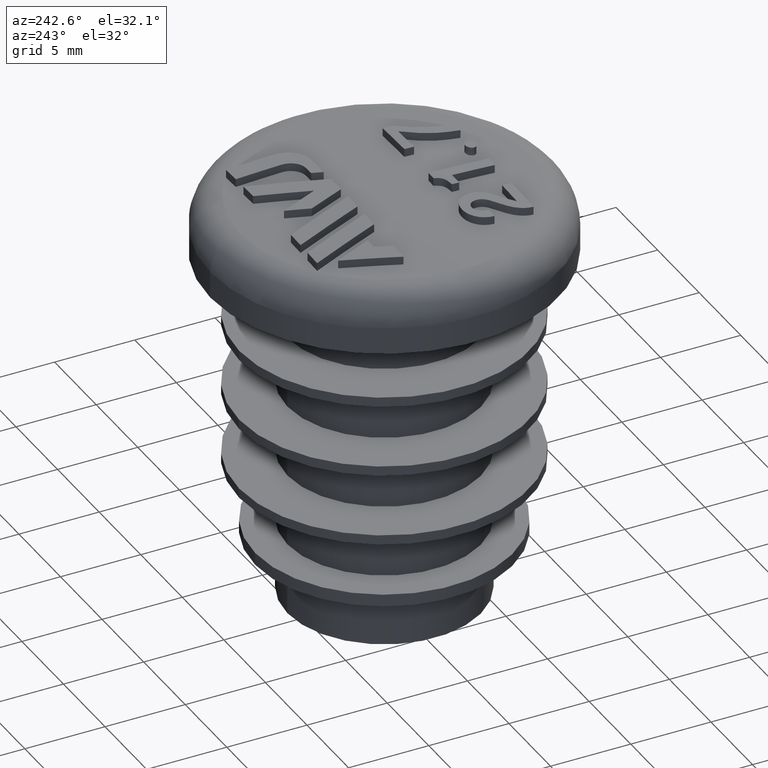
[diagram: clean part render]
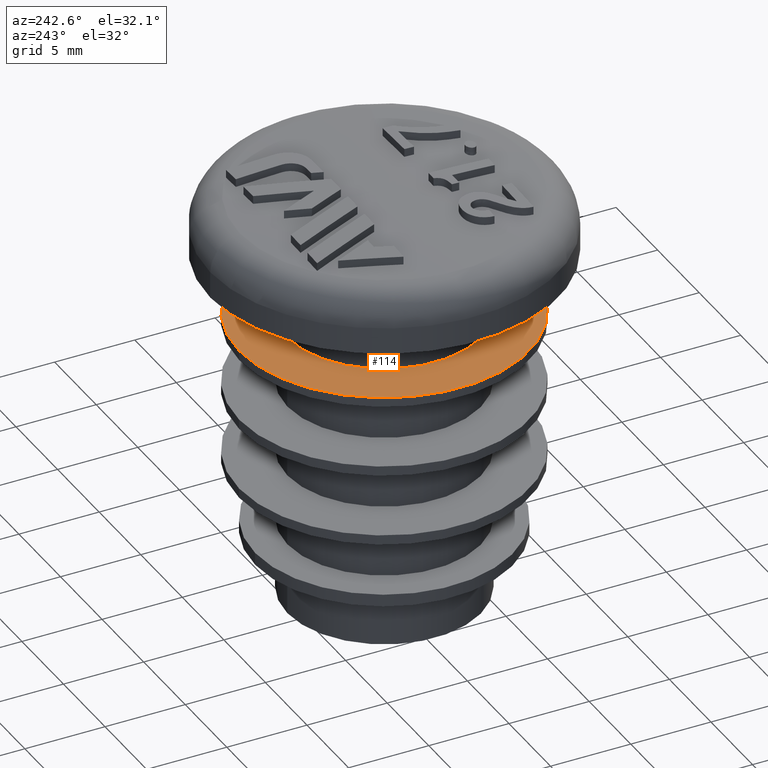
[diagram: same view with one face highlighted and labeled with its STEP entity id]
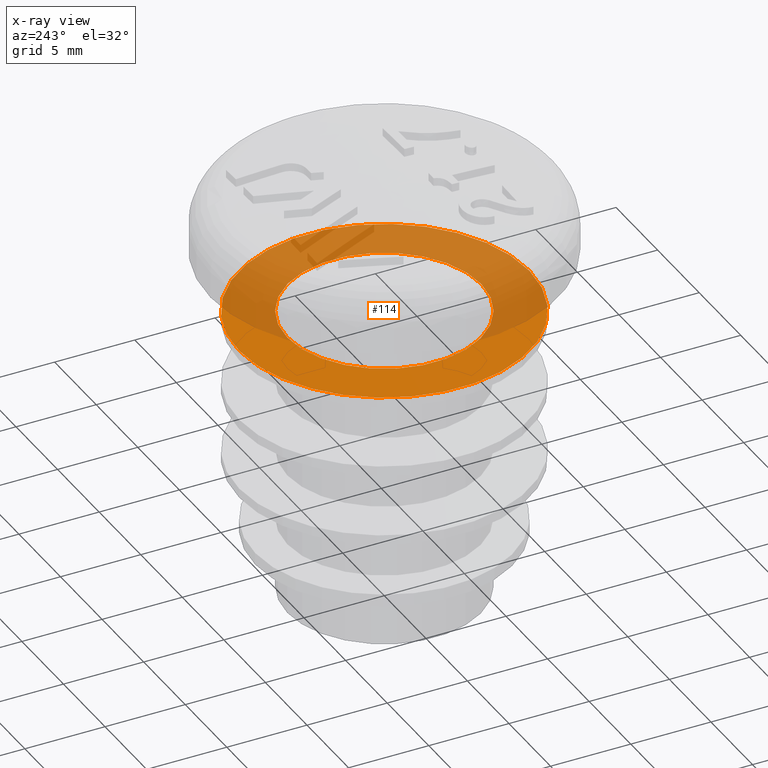
[diagram: x-ray of the same camera — body ghosted, the highlighted face saturated]
A machine part, auxiliary view. The second image highlights one B-rep face of the part: STEP entity #114.
The next image is the same camera in x-ray: the body ghosted, the highlighted face saturated — about 56% of this face is hidden behind the body in this view.
In plain terms, the highlighted planar face has unit normal (0, -0, -1).
Its self-contained STEP definition (entity closure, byte-faithful):
#114 = ADVANCED_FACE( '', ( #251, #252 ), #253, .F. );
#251 = FACE_OUTER_BOUND( '', #617, .T. );
#252 = FACE_BOUND( '', #618, .T. );
#253 = PLANE( '', #619 );
#617 = EDGE_LOOP( '', ( #1099 ) );
#618 = EDGE_LOOP( '', ( #1100 ) );
#619 = AXIS2_PLACEMENT_3D( '', #1101, #1102, #1103 );
#1099 = ORIENTED_EDGE( '', *, *, #1521, .F. );
#1100 = ORIENTED_EDGE( '', *, *, #1520, .T. );
#1101 = CARTESIAN_POINT( '', ( -6.05000000000000, -2.44921270764475E-016, 18.0000000000000 ) );
#1102 = DIRECTION( '', ( 0.000000000000000, -6.12303176911189E-017, -1.00000000000000 ) );
#1103 = DIRECTION( '', ( 0.000000000000000, 1.00000000000000, -6.12303176911189E-017 ) );
#1520 = EDGE_CURVE( '', #1778, #1778, #1779, .T. );
#1521 = EDGE_CURVE( '', #1780, #1780, #1781, .T. );
#1778 = VERTEX_POINT( '', #2586 );
#1779 = CIRCLE( '', #2587, 6.05000000000000 );
#1780 = VERTEX_POINT( '', #2588 );
#1781 = CIRCLE( '', #2589, 9.05000000000000 );
#2586 = CARTESIAN_POINT( '', ( 0.000000000000000, 6.05000000000000, 18.0000000000000 ) );
#2587 = AXIS2_PLACEMENT_3D( '', #2886, #2887, #2888 );
#2588 = CARTESIAN_POINT( '', ( 0.000000000000000, 9.05000000000000, 18.0000000000000 ) );
#2589 = AXIS2_PLACEMENT_3D( '', #2889, #2890, #2891 );
#2886 = CARTESIAN_POINT( '', ( 0.000000000000000, -2.44921270764476E-016, 18.0000000000000 ) );
#2887 = DIRECTION( '', ( 0.000000000000000, -6.12303176911189E-017, -1.00000000000000 ) );
#2888 = DIRECTION( '', ( 0.000000000000000, 1.00000000000000, -6.12303176911189E-017 ) );
#2889 = CARTESIAN_POINT( '', ( 0.000000000000000, -2.44921270764475E-016, 18.0000000000000 ) );
#2890 = DIRECTION( '', ( 0.000000000000000, -6.12303176911189E-017, -1.00000000000000 ) );
#2891 = DIRECTION( '', ( 0.000000000000000, 1.00000000000000, -6.12303176911189E-017 ) );